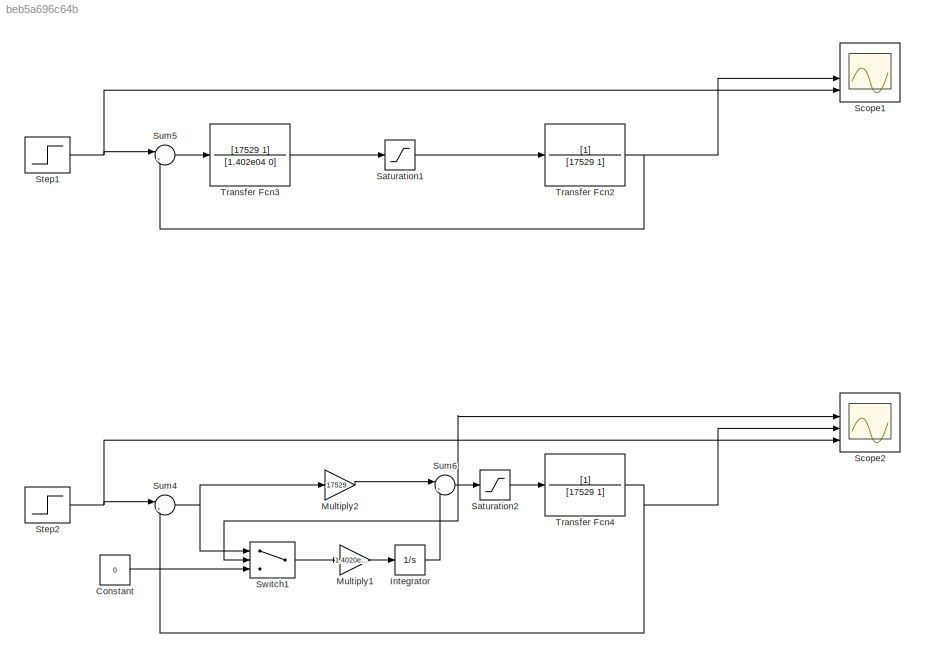
MODEL slx_beb5a696c64b
KIND model
CONFIG AbsTol = auto
CONFIG EnableMultiTasking = off
CONFIG FixedStep = auto
CONFIG MaxStep = auto
CONFIG MinStep = auto
CONFIG RelTol = 1e-3
CONFIG SampleTimeConstraint = Unconstrained
CONFIG Solver = VariableStepAuto
CONFIG SolverName = VariableStepAuto
CONFIG StartTime = 0.0
CONFIG StopTime = 100000
BLOCK [Constant] Constant
  Value = 0
BLOCK [Integrator] Integrator
  Ports = [1, 1]
BLOCK [Gain] Multiply1
  Gain = 1.4020e-04
BLOCK [Gain] Multiply2
  Gain = 17529
BLOCK [Saturate] Saturation1
  LowerLimit = -0.6
  UpperLimit = 4
BLOCK [Saturate] Saturation2
  LowerLimit = -0.6
  UpperLimit = 4
BLOCK [Scope] Scope1
  Floating = off
  NumInputPorts = 4
  Ports = [4]
  ScopeSpecificationString = Simulink.scopes.TimeScopeBlockCfg('CurrentConfiguration', extmgr.ConfigurationSet(extmgr.Configuration('Core','General UI',true),extmgr.Configuration('Core','Source UI',true),extmgr.Configuration('Sources','WiredSimulink',true,'DataLoggingVariableName','ScopeData1'),extmgr.Configuration('Visuals','Time Domain',true,'SerializedDisplays',{struct('MinYLimReal','-0.125','MaxYLimReal','1.125','YLabelRe...<+1623ch>
BLOCK [Scope] Scope2
  Floating = off
  NumInputPorts = 4
  Ports = [4]
  ScopeSpecificationString = Simulink.scopes.TimeScopeBlockCfg('CurrentConfiguration', extmgr.ConfigurationSet(extmgr.Configuration('Core','General UI',true),extmgr.Configuration('Core','Source UI',true),extmgr.Configuration('Sources','WiredSimulink',true,'DataLoggingVariableName','ScopeData2'),extmgr.Configuration('Visuals','Time Domain',true,'SerializedDisplays',{struct('MinYLimReal','-2191.125','MaxYLimReal','19720.125','Y...<+1652ch>
BLOCK [Step] Step1
  SampleTime = 0
  Time = 100
BLOCK [Step] Step2
  SampleTime = 0
  Time = 100
BLOCK [Sum] Sum4
  Inputs = |+-
  Ports = [2, 1]
BLOCK [Sum] Sum5
  Inputs = |+-
  Ports = [2, 1]
BLOCK [Sum] Sum6
  Inputs = |++
  Ports = [2, 1]
BLOCK [Switch] Switch1
  Criteria = u2 > Threshold
  InputSameDT = off
  SaturateOnIntegerOverflow = off
  Threshold = 1.9276e+05
BLOCK [TransferFcn] Transfer Fcn2
  Denominator = [17529 1]
BLOCK [TransferFcn] Transfer Fcn3
  Denominator = [1.402e04 0]
  Numerator = [17529 1]
BLOCK [TransferFcn] Transfer Fcn4
  Denominator = [17529 1]
LINE Constant:1 -> Switch1:3
LINE Integrator:1 -> Sum6:2
LINE Multiply1:1 -> Integrator:1
LINE Multiply2:1 -> Sum6:1
LINE Saturation1:1 -> Transfer Fcn2:1
LINE Saturation2:1 -> Transfer Fcn4:1
NET Step1:1 -> Scope1:4, Sum5:1
NET Step2:1 -> Scope2:4, Sum4:1
NET Sum4:1 -> Multiply2:1, Switch1:1
LINE Sum5:1 -> Transfer Fcn3:1
NET Sum6:1 -> Saturation2:1, Scope2:2, Switch1:2
LINE Switch1:1 -> Multiply1:1
NET Transfer Fcn2:1 -> Scope1:3, Sum5:2
LINE Transfer Fcn3:1 -> Saturation1:1
NET Transfer Fcn4:1 -> Scope2:3, Sum4:2
note: NET lines group one-source signal fan-out (src -> all destinations, sorted); 1:1 wires keep LINE
